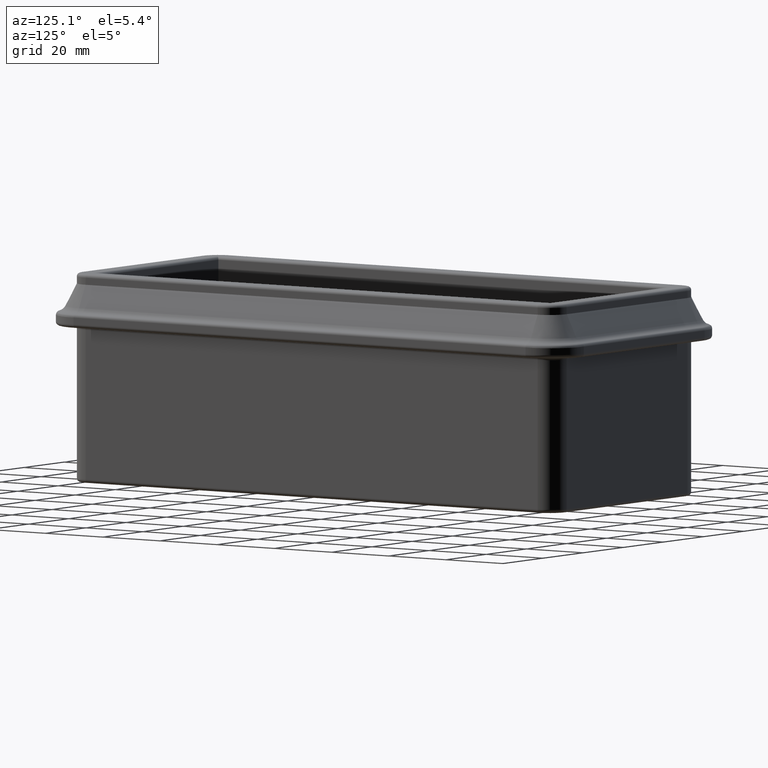
[diagram: clean part render]
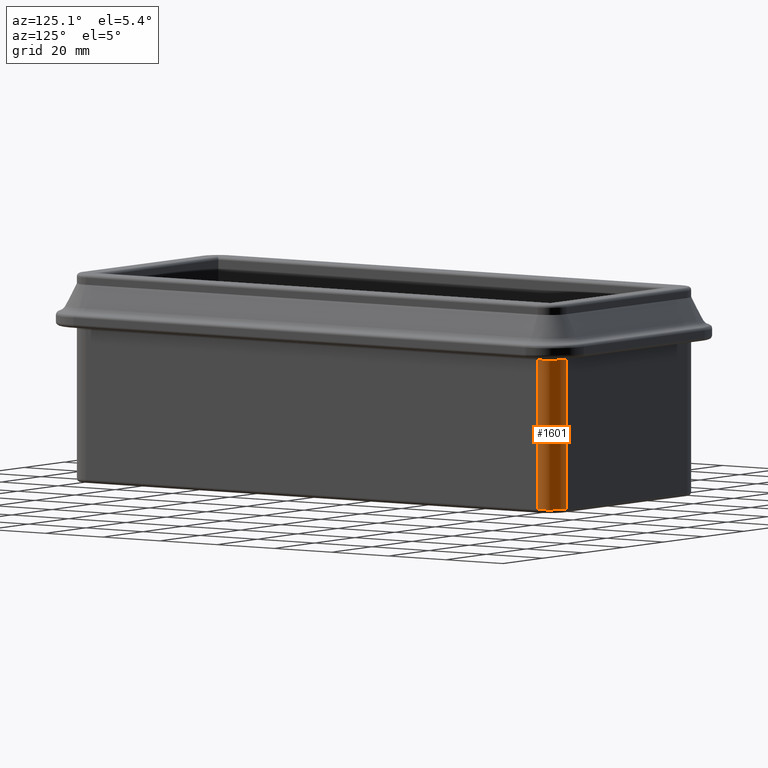
[diagram: same view with one face highlighted and labeled with its STEP entity id]
A machine part, auxiliary view. The second image highlights one B-rep face of the part: STEP entity #1601.
In plain terms, the highlighted cylindrical surface (edge-blend (fillet) strip) has radius 6 mm, axis along (0, 0, 1).
Its self-contained STEP definition (entity closure, byte-faithful):
#114=FACE_OUTER_BOUND('',#223,.T.);
#223=EDGE_LOOP('',(#1148,#1149,#1150,#1151));
#337=LINE('',#2633,#465);
#340=LINE('',#2639,#468);
#465=VECTOR('',#2085,10.);
#468=VECTOR('',#2090,10.);
#600=CIRCLE('',#1756,6.);
#609=CIRCLE('',#1772,6.);
#702=VERTEX_POINT('',#2593);
#704=VERTEX_POINT('',#2599);
#714=VERTEX_POINT('',#2632);
#716=VERTEX_POINT('',#2638);
#859=EDGE_CURVE('',#702,#704,#600,.T.);
#874=EDGE_CURVE('',#704,#714,#337,.T.);
#877=EDGE_CURVE('',#702,#716,#340,.T.);
#878=EDGE_CURVE('',#714,#716,#609,.T.);
#1148=ORIENTED_EDGE('',*,*,#859,.F.);
#1149=ORIENTED_EDGE('',*,*,#877,.T.);
#1150=ORIENTED_EDGE('',*,*,#878,.F.);
#1151=ORIENTED_EDGE('',*,*,#874,.F.);
#1538=CYLINDRICAL_SURFACE('',#1771,6.);
#1601=ADVANCED_FACE('',(#114),#1538,.T.);
#1756=AXIS2_PLACEMENT_3D('',#2603,#2049,#2050);
#1771=AXIS2_PLACEMENT_3D('',#2637,#2088,#2089);
#1772=AXIS2_PLACEMENT_3D('',#2640,#2091,#2092);
#2049=DIRECTION('center_axis',(0.,0.,1.));
#2050=DIRECTION('ref_axis',(0.707106781186549,0.707106781186546,0.));
#2085=DIRECTION('',(-2.64907202712631E-32,6.90805437544542E-16,-1.));
#2088=DIRECTION('center_axis',(0.,0.,1.));
#2089=DIRECTION('ref_axis',(1.,0.,0.));
#2090=DIRECTION('',(6.90805437544542E-16,6.87903536673886E-32,-1.));
#2091=DIRECTION('center_axis',(0.,0.,-1.));
#2092=DIRECTION('ref_axis',(0.707106781186549,0.707106781186546,0.));
#2593=CARTESIAN_POINT('',(36.,79.,14.));
#2599=CARTESIAN_POINT('',(30.,85.,14.));
#2603=CARTESIAN_POINT('Origin',(30.,79.,14.));
#2632=CARTESIAN_POINT('',(30.,85.,-29.));
#2633=CARTESIAN_POINT('',(30.,85.,-30.));
#2637=CARTESIAN_POINT('Origin',(30.,79.,-7.50000000000002));
#2638=CARTESIAN_POINT('',(36.,79.,-29.));
#2639=CARTESIAN_POINT('',(36.,79.,-30.));
#2640=CARTESIAN_POINT('Origin',(30.,79.,-29.));